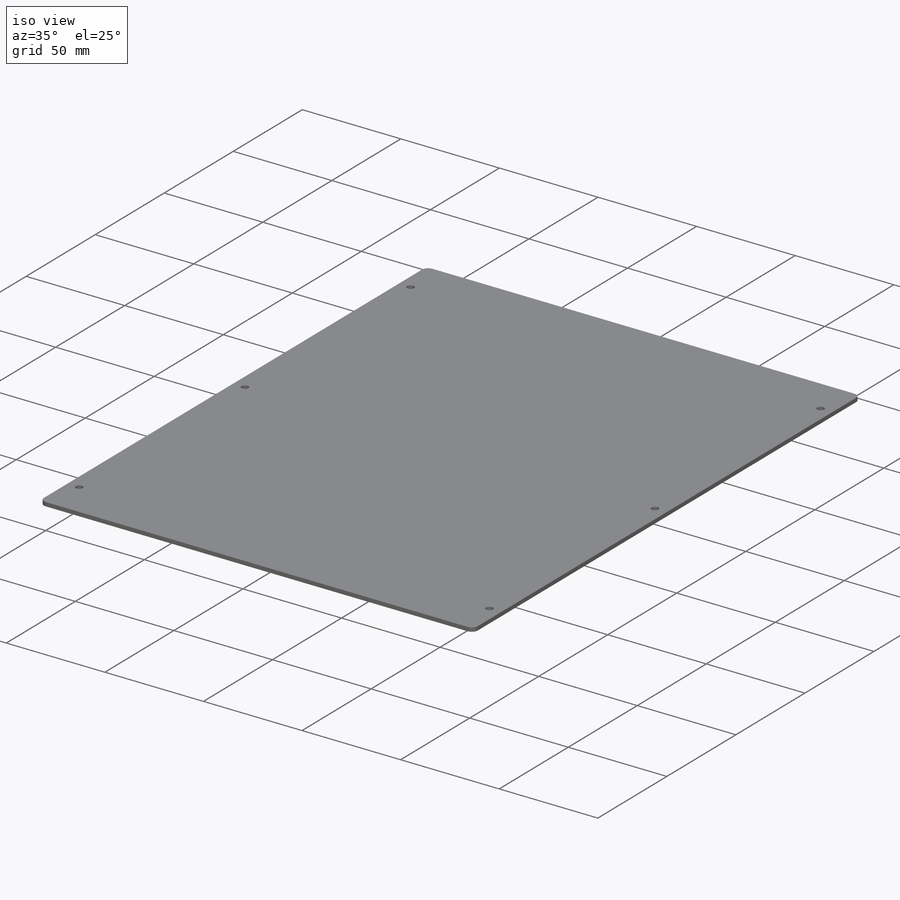
[diagram: iso view]
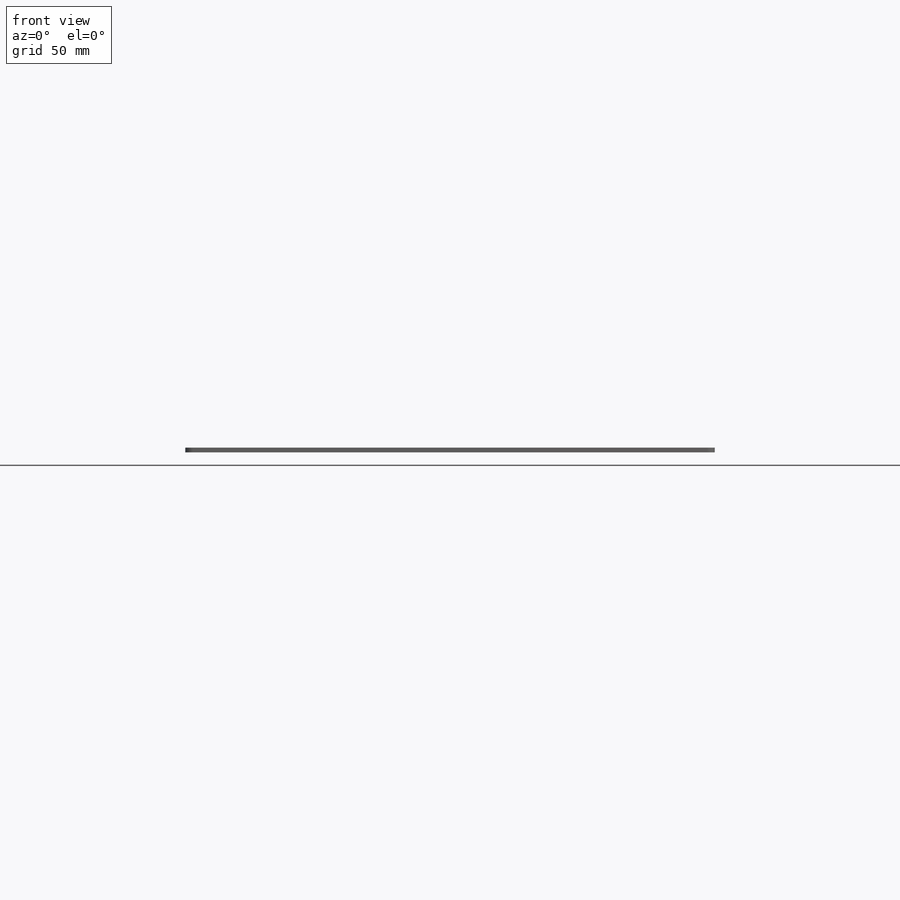
[diagram: front view]
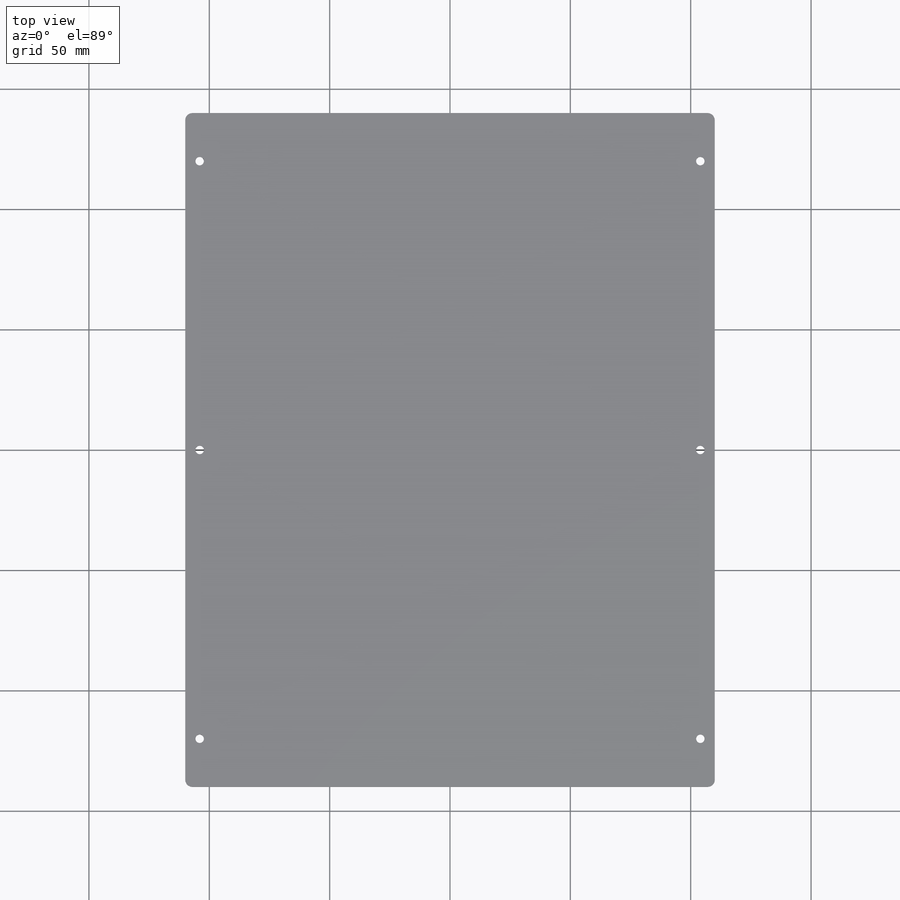
[diagram: top view]
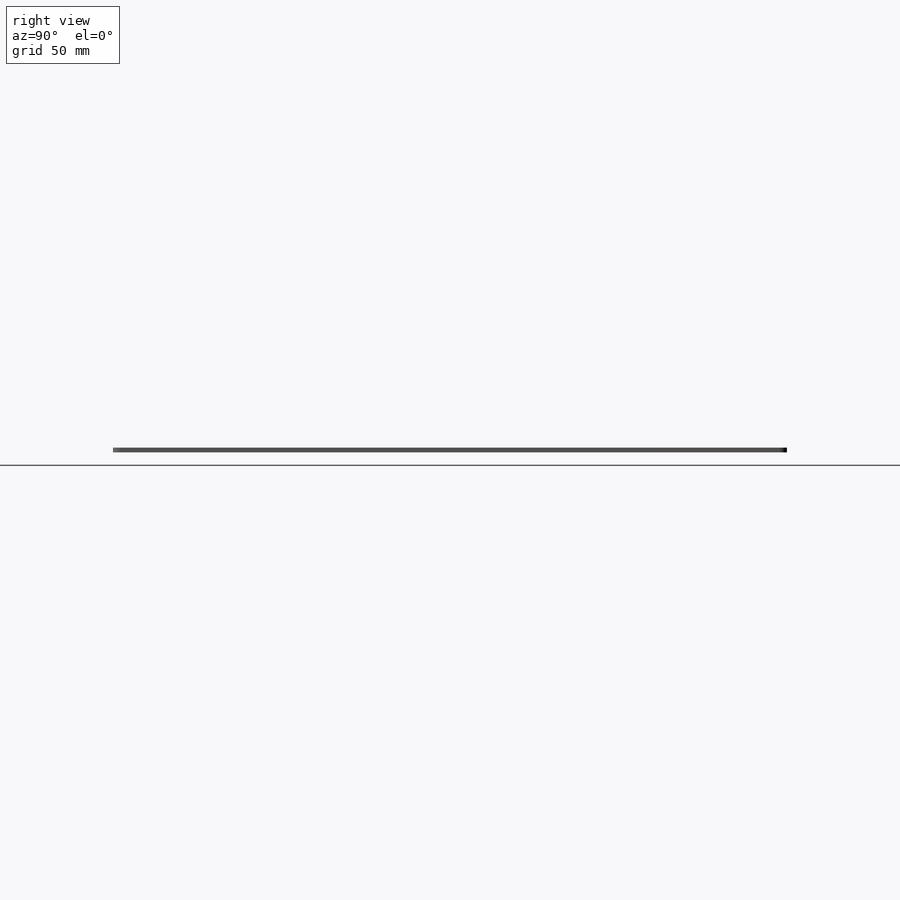
[diagram: right view]
SOLIDWORKS PART (.sldprt)
format: sldprt  version: not decoded by parser v0  size: 185,856 bytes
history: native  units: mm
features: sketch x4, plane x3, material x1, extrude x1, hole x1, fillet x1 + 3 further entries (+7 scaffold rows collapsed)
feature tree (21):
  scaffold x7  (default folders/planes/origin — collapsed)
  material  "Material <not specified>"
  "곡면 바디"
  "솔리드 바디"
  plane  "정면"
  plane  "윗면"
  plane  "우측면"
  "원점"
  sketch  "Sketch1"  dims[c1.D1=~100.590304mm c1.D2=~92.584848mm c2.D1=220.0mm c2.D2=280.0mm]
  extrude  "Boss-Extrude1"  Depth=2mm
  hole  "Ø3.5 (3.5) Diameter Hole1"  Diameter=3.5mm Depth=2mm
  sketch  "Sketch3"  dims[D1=208.0mm D2=208.0mm D3=104.0mm D4=20.0mm D5=20.0mm D6=~75.159501mm]
  sketch  "Sketch2"  dims[hole-wizard template sketch: 60 standard entries collapsed; hole parameters kept: c18.Thru Hole Depth=2.0mm]
  fillet  "Fillet1"  Radius=3mm
  sketch  "Sketch4"  dims[c1.D1=~63.385535mm c1.D2=~109.371119mm c2.D1=135.0mm c2.D2=96.0mm c2.D3=~55.306986mm c2.D4=~48.471291mm c3.D3=51.0mm c3.D4=77.0mm c3.D5=~10.738255mm c3.D6=~8.590604mm c4.D5=~56.487952mm c4.D6=~135.079885mm c5.D5=180.0mm c5.D6=95.0mm]
decode coverage: 7 of 7 modeling features carry decoded parameters; 3 rows unclassified (native names shown)
note: ~ marks probable driven/reference dimensions
note: suppression state not decoded; provenance and decode notes live in map.json
